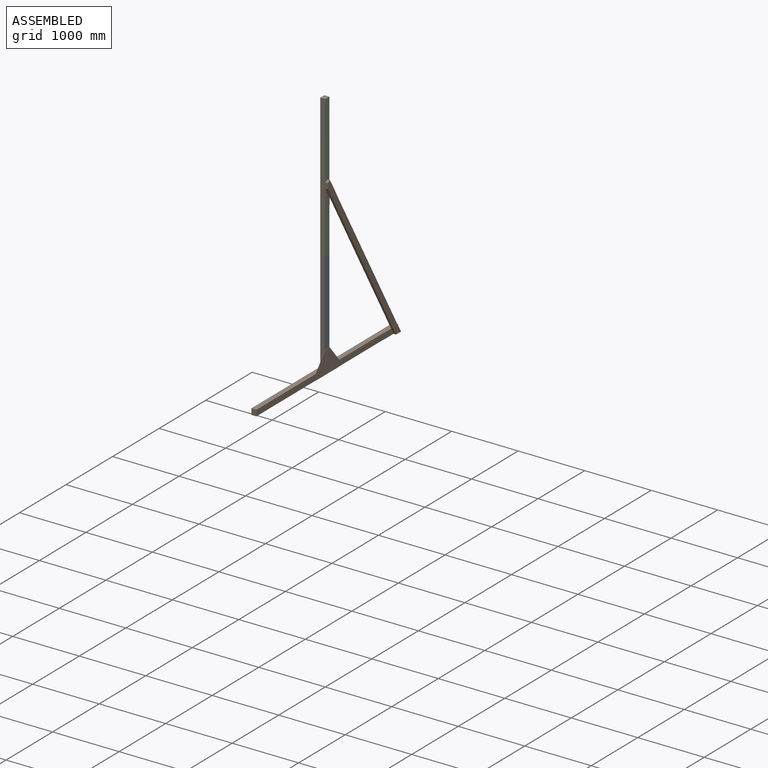
[diagram: assembled view]
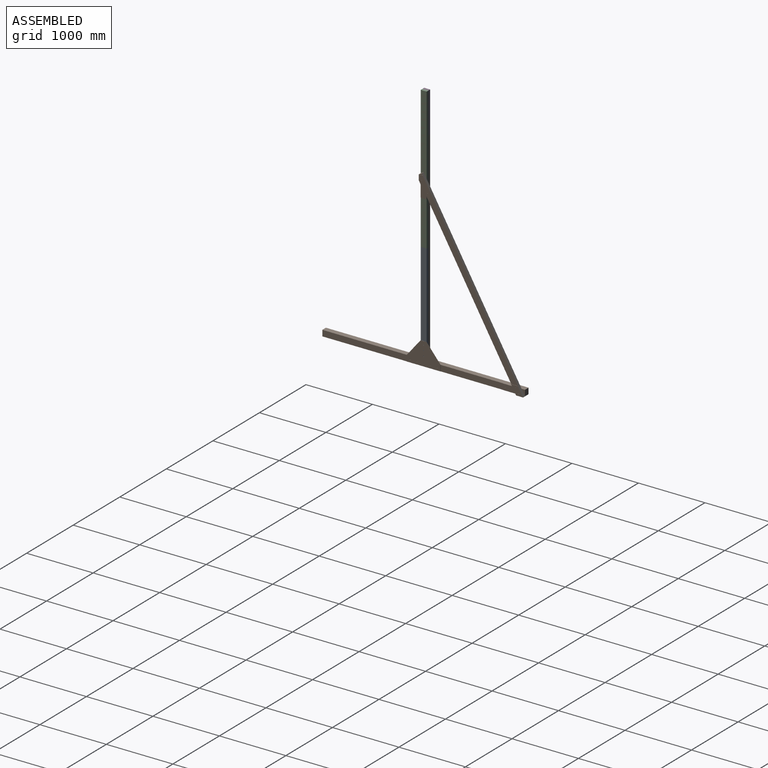
[diagram: assembled view, second angle]
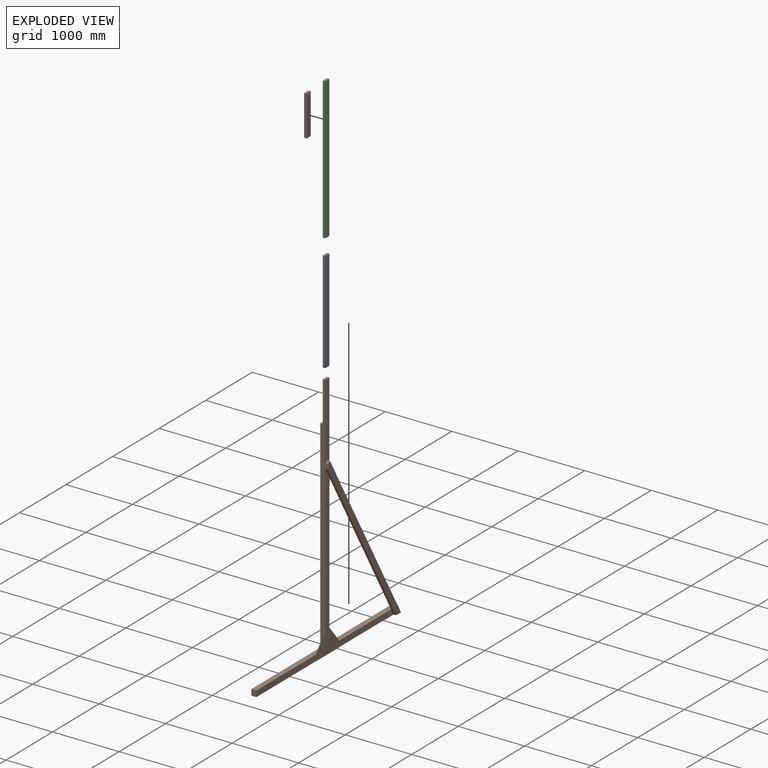
[diagram: exploded view]
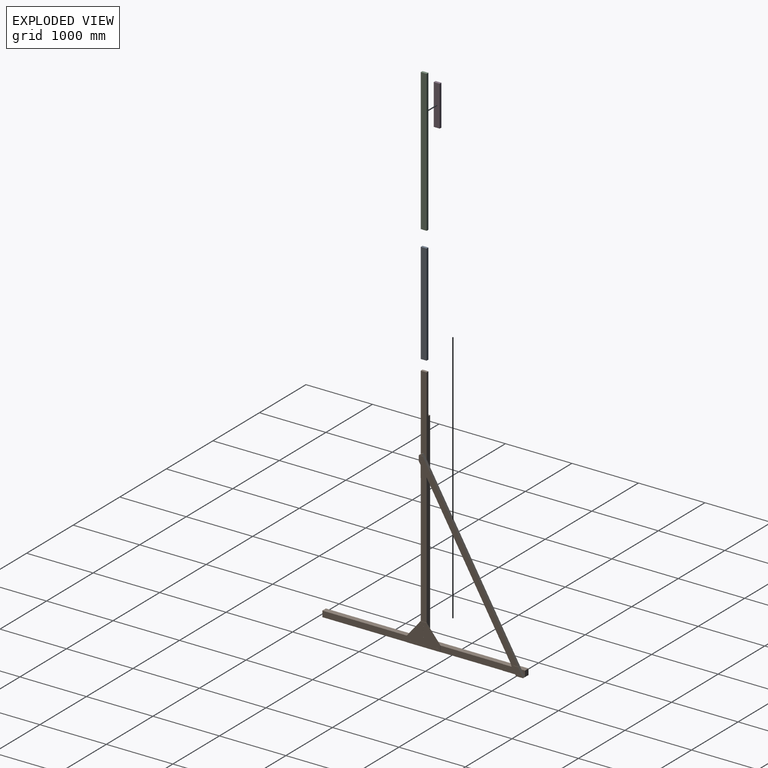
[diagram: exploded view, second angle]
ASSEMBLY  parts=4 mates=4
PART A: 6 faces, bbox 38.1x88.9x1524 mm
  f0: plane 1524x38.1mm, normal (0,-1,0), area 58064.4mm2, adj f1,f3,f4,f5
  f1: plane 88.9x38.1mm, normal (0,0,-1), area 3387.1mm2, adj f0,f2,f4,f5
  f2: plane 1524x38.1mm, normal (0,1,0), area 58064.4mm2, adj f1,f3,f4,f5
  f3: plane 88.9x38.1mm, normal (0,0,1), area 3387.1mm2, adj f0,f2,f4,f5
  f4: plane 1524x88.9mm, normal (1,0,0), area 135483.6mm2, adj f0,f1,f2,f3
  f5: plane 1524x88.9mm, normal (-1,0,0), area 135483.6mm2, adj f0,f1,f2,f3
PART B: 82 faces, bbox 117.5x3048x3746.5 mm
  f0: plane 59.27x25.66mm, normal (1,0,0), area 760.5mm2, adj f25,f26,f76
  f1: plane 2295.96x1325.57mm, normal (0,-0.87,-0.5), area 98127.9mm2, adj f4,f12,f21,f24,f59,f62,f71,f73
  f2: plane 249.23x88.9mm, normal (1,0,0), area 15312.1mm2, adj f19,f21,f70,f72
  f3: plane 6.35x2.75mm, normal (1,0,0), area 8.7mm2, adj f5,f19,f74
  f4: plane 2268.98x1386.98mm, normal (1,0,0), area 230635.5mm2, adj f1,f25,f63,f73
  f5: plane 34.93x4.76mm, normal (0,-0.87,-0.5), area 192.1mm2, adj f3,f19,f74,f79
  f6: plane 34.93x1.59mm, normal (0,-0.87,-0.5), area 64mm2, adj f14,f55,f61,f67
  f7: plane 225.46x88.9mm, normal (1,0,0), area 17573.1mm2, adj f12,f14,f51,f52,f53,f54,f60
  f8: plane 1940.36x88.9mm, normal (1,0,0), area 172497.6mm2, adj f19,f21,f40,f70
  f9: plane 1270x88.9mm, normal (1,0,0), area 112903mm2, adj f13,f14,f16,f30
  f10: plane 938.22x88.9mm, normal (1,0,0), area 83407.8mm2, adj f12,f14,f31,f51
  f11: plane 88.9x51.33mm, normal (1,0,0), area 2281.5mm2, adj f12,f15,f25
  f12: plane 1479.55x79.38mm, normal (0,0,1), area 113306.2mm2, adj f1,f7,f10,f11,f15,f18,f21,f24
  f13: plane 1479.55x76.2mm, normal (0,0,1), area 112741.7mm2, adj f9,f16,f18,f19,f28
  f14: plane 3048x117.48mm, normal (0,0,-1), area 238846.6mm2, adj f6,f7,f9,f10,f15,f16,f18,f25
  f15: plane 88.9x76.2mm, normal (0,1,0), area 6774.2mm2, adj f11,f12,f14,f18
  f16: plane 88.9x76.2mm, normal (0,-1,0), area 6774.2mm2, adj f9,f13,f14,f18
  f17: plane 1183.84x88.9mm, normal (1,0,0), area 100680.8mm2, adj f19,f21,f23,f25,f26
  f18: plane 3136.9x3048mm, normal (-1,0,0), area 541934.4mm2, adj f12,f13,f14,f15,f16,f19,f20,f21
  f19: plane 3657.6x117.48mm, normal (0,-1,0), area 259416.7mm2, adj f2,f3,f5,f8,f13,f17,f18,f20
  f20: plane 88.9x38.1mm, normal (0,0,1), area 3387.1mm2, adj f18,f19,f21,f22
  f21: plane 3657.6x79.38mm, normal (0,1,0), area 255805.9mm2, adj f1,f2,f8,f12,f17,f18,f20,f22
  f22: plane 609.6x88.9mm, normal (-1,0,0), area 54193.4mm2, adj f19,f20,f21,f23
  f23: plane 88.9x38.1mm, normal (0,0,1), area 3387.1mm2, adj f17,f19,f21,f22
  f24: plane 2473.76x1428.22mm, normal (-1,0,0), area 244812.3mm2, adj f1,f12,f21,f25
  f25: plane 2639.65x1524mm, normal (0,0.87,0.5), area 117393.7mm2, adj f0,f4,f11,f14,f17,f24,f26,f63
  f26: plane 44.45x38.1mm, normal (0,-0.5,0.87), area 1955.5mm2, adj f0,f17,f19,f25
  f27: plane 254x209.55mm, normal (-1,0,0), area 26612.8mm2, adj f12,f21,f32
  f28: plane 254x209.55mm, normal (-1,0,0), area 26612.8mm2, adj f13,f19,f29
  f29: plane 254x209.55mm, normal (0,-0.77,0.64), area 1045.5mm2, adj f28,f30,f40,f42
  f30: plane 88.9x3.18mm, normal (0,-1,0), area 282.3mm2, adj f9,f14,f29,f42
  f31: plane 88.9x3.18mm, normal (0,1,0), area 282.3mm2, adj f10,f14,f32,f42
  f32: plane 254x209.55mm, normal (0,0.77,0.64), area 1045.5mm2, adj f27,f31,f40,f42
  f33: cylinder r=6.99mm len=13.97mm, axis (-1,0,0), area 139.3mm2, adj f42,f50
  f34: cylinder r=6.99mm len=13.97mm, axis (-1,0,0), area 139.3mm2, adj f42,f49
  f35: cylinder r=6.99mm len=13.97mm, axis (-1,0,0), area 139.3mm2, adj f42,f48
  f36: cylinder r=6.99mm len=13.97mm, axis (-1,0,0), area 139.3mm2, adj f42,f47
  f37: cylinder r=6.99mm len=13.97mm, axis (-1,0,0), area 139.3mm2, adj f42,f46
  f38: cylinder r=6.35mm len=12.7mm, axis (-1,0,0), area 126.7mm2, adj f42,f45
  f39: cylinder r=6.99mm len=13.97mm, axis (-1,0,0), area 139.3mm2, adj f42,f44
  f40: plane 88.9x3.18mm, normal (0,0,1), area 282.3mm2, adj f8,f29,f32,f42
  f41: cylinder r=6.99mm len=13.97mm, axis (-1,0,0), area 139.3mm2, adj f42,f43
  f42: plane 508x342.9mm, normal (1,0,0), area 119767.9mm2, adj f14,f29,f30,f31,f32,f33,f34,f35
  f43: plane 13.97x13.97mm, normal (1,0,0), area 153.3mm2, adj f41
  f44: plane 13.97x13.97mm, normal (1,0,0), area 153.3mm2, adj f39
  f45: plane 12.7x12.7mm, normal (1,0,0), area 126.7mm2, adj f38
  f46: plane 13.97x13.97mm, normal (1,0,0), area 153.3mm2, adj f37
  f47: plane 13.97x13.97mm, normal (1,0,0), area 153.3mm2, adj f36
  f48: plane 13.97x13.97mm, normal (1,0,0), area 153.3mm2, adj f35
  f49: plane 13.97x13.97mm, normal (1,0,0), area 153.3mm2, adj f34
  f50: plane 13.97x13.97mm, normal (1,0,0), area 153.3mm2, adj f33
  f51: plane 88.9x3.18mm, normal (0,-1,0), area 282.3mm2, adj f7,f10,f12,f14
  f52: cylinder r=6.99mm len=13.97mm, axis (-1,0,0), area 139.3mm2, adj f7,f58
  f53: cylinder r=2.38mm len=4.76mm, axis (-1,0,0), area 47.5mm2, adj f7,f57
  f54: cylinder r=2.38mm len=4.76mm, axis (-1,0,0), area 47.5mm2, adj f7,f56
  f55: plane 3.67x1.59mm, normal (1,0,0), area 2.9mm2, adj f6,f14,f61
  f56: plane 4.76x4.76mm, normal (1,0,0), area 17.8mm2, adj f54
  f57: plane 4.76x4.76mm, normal (1,0,0), area 17.8mm2, adj f53
  f58: plane 13.97x13.97mm, normal (1,0,0), area 153.3mm2, adj f52
  f59: plane 44.67x28.54mm, normal (-1,0,0), area 160.9mm2, adj f1,f12,f60,f62
  f60: plane 131.98x76.2mm, normal (0,-0.87,-0.5), area 5806.4mm2, adj f7,f14,f59,f61,f62,f66
  f61: plane 34.93x2.75mm, normal (0,0.5,-0.87), area 110.9mm2, adj f6,f55,f60,f67
  f62: plane 38.1x2.75mm, normal (0,-0.5,0.87), area 121mm2, adj f1,f59,f60,f63,f66
  f63: plane 102.65x3.18mm, normal (0,0,1), area 325.9mm2, adj f4,f25,f62,f66
  f64: cylinder r=6.99mm len=13.97mm, axis (-1,0,0), area 139.3mm2, adj f66,f68
  f65: cylinder r=6.99mm len=13.97mm, axis (-1,0,0), area 139.3mm2, adj f66,f69
  f66: plane 182.52x133.57mm, normal (1,0,0), area 13891.5mm2, adj f14,f25,f60,f62,f63,f64,f65
  f67: plane 3.67x1.59mm, normal (-1,0,0), area 2.9mm2, adj f6,f14,f61
  f68: plane 13.97x13.97mm, normal (1,0,0), area 153.3mm2, adj f64
  f69: plane 13.97x13.97mm, normal (1,0,0), area 153.3mm2, adj f65
  f70: plane 88.9x3.18mm, normal (0,0,-1), area 282.3mm2, adj f2,f8,f19,f21
  f71: plane 28.35x15.45mm, normal (-1,0,0), area 89.4mm2, adj f1,f21,f72,f73
  f72: plane 175.98x101.6mm, normal (0,-0.87,-0.5), area 7741.9mm2, adj f2,f19,f71,f73,f74,f78
  f73: plane 79.74x46.04mm, normal (0,0.5,-0.87), area 403.2mm2, adj f1,f4,f25,f71,f72,f78
  f74: plane 34.93x2.75mm, normal (0,-0.5,0.87), area 110.9mm2, adj f3,f5,f72,f79
  f75: cylinder r=6.99mm len=13.97mm, axis (-1,0,0), area 139.3mm2, adj f78,f81
  f76: plane 59.27x3.18mm, normal (0,0,1), area 188.2mm2, adj f0,f19,f25,f78
  f77: cylinder r=6.99mm len=13.97mm, axis (-1,0,0), area 139.3mm2, adj f78,f80
  f78: plane 257.47x181.34mm, normal (1,0,0), area 22703.1mm2, adj f19,f25,f72,f73,f75,f76,f77
  f79: plane 6.35x2.75mm, normal (-1,0,0), area 8.7mm2, adj f5,f19,f74
  f80: plane 13.97x13.97mm, normal (1,0,0), area 153.3mm2, adj f77
  f81: plane 13.97x13.97mm, normal (1,0,0), area 153.3mm2, adj f75
PART C: 6 faces, bbox 38.1x88.9x2133.6 mm
  f0: plane 2133.6x38.1mm, normal (0,-1,0), area 81290.2mm2, adj f1,f3,f4,f5
  f1: plane 88.9x38.1mm, normal (0,0,-1), area 3387.1mm2, adj f0,f2,f4,f5
  f2: plane 2133.6x38.1mm, normal (0,1,0), area 81290.2mm2, adj f1,f3,f4,f5
  f3: plane 88.9x38.1mm, normal (0,0,1), area 3387.1mm2, adj f0,f2,f4,f5
  f4: plane 2133.6x88.9mm, normal (1,0,0), area 189677mm2, adj f0,f1,f2,f3
  f5: plane 2133.6x88.9mm, normal (-1,0,0), area 189677mm2, adj f0,f1,f2,f3
PART D: 6 faces, bbox 38.1x88.9x609.6 mm
  f0: plane 609.6x38.1mm, normal (0,-1,0), area 23225.8mm2, adj f1,f3,f4,f5
  f1: plane 88.9x38.1mm, normal (0,0,-1), area 3387.1mm2, adj f0,f2,f4,f5
  f2: plane 609.6x38.1mm, normal (0,1,0), area 23225.8mm2, adj f1,f3,f4,f5
  f3: plane 88.9x38.1mm, normal (0,0,1), area 3387.1mm2, adj f0,f2,f4,f5
  f4: plane 609.6x88.9mm, normal (1,0,0), area 54193.4mm2, adj f0,f1,f2,f3
  f5: plane 609.6x88.9mm, normal (-1,0,0), area 54193.4mm2, adj f0,f1,f2,f3
PLACE A t=(-473.43,667.38,-68.23)mm
PLACE B t=(-511.81,667.38,-157.13)mm fixed
PLACE C t=(-473.71,667.38,1455.77)mm
PLACE D t=(-511.81,667.38,2979.77)mm
MATE planar C.f1 <-> A.f3  axis (0,0,-1) through (-473.71,667.38,1455.77)mm
MATE planar D.f4 <-> C.f5  axis (1,0,0) through (-473.71,667.38,3284.57)mm
MATE planar B.f13 <-> A.f1  axis (0,0,1) through (-473.71,-116.84,-68.23)mm
MATE planar B.f20 <-> D.f1  axis (0,0,1) through (-473.71,667.38,2979.77)mm
